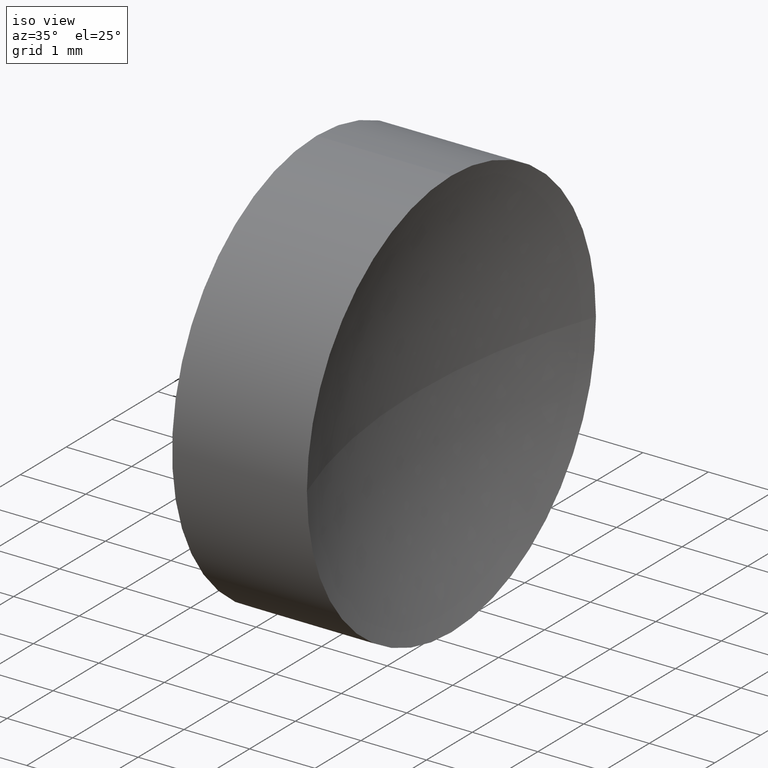
[diagram: clean part render]
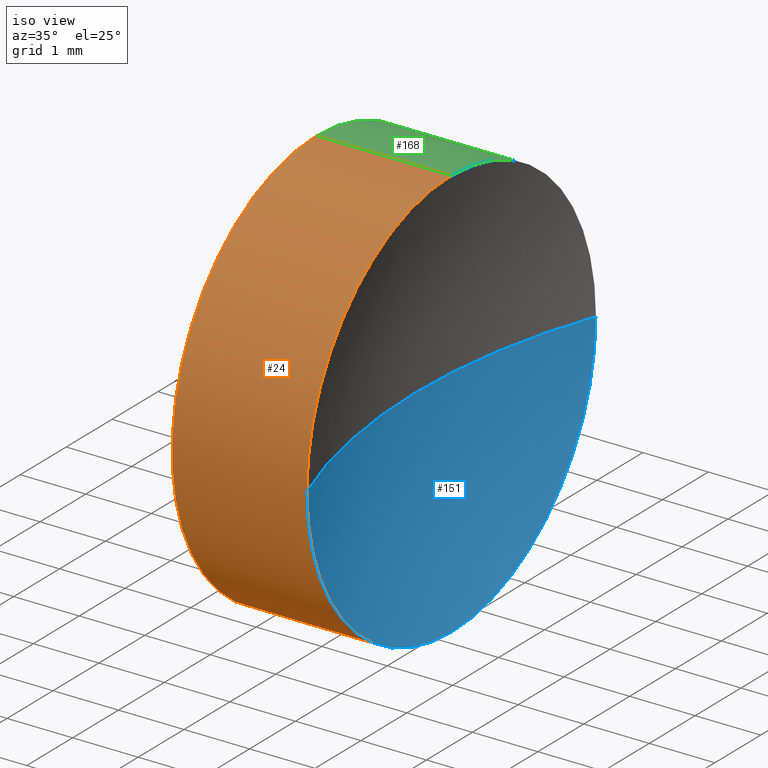
[diagram: same view with three faces highlighted in distinct colors, each labeled with its STEP entity id]
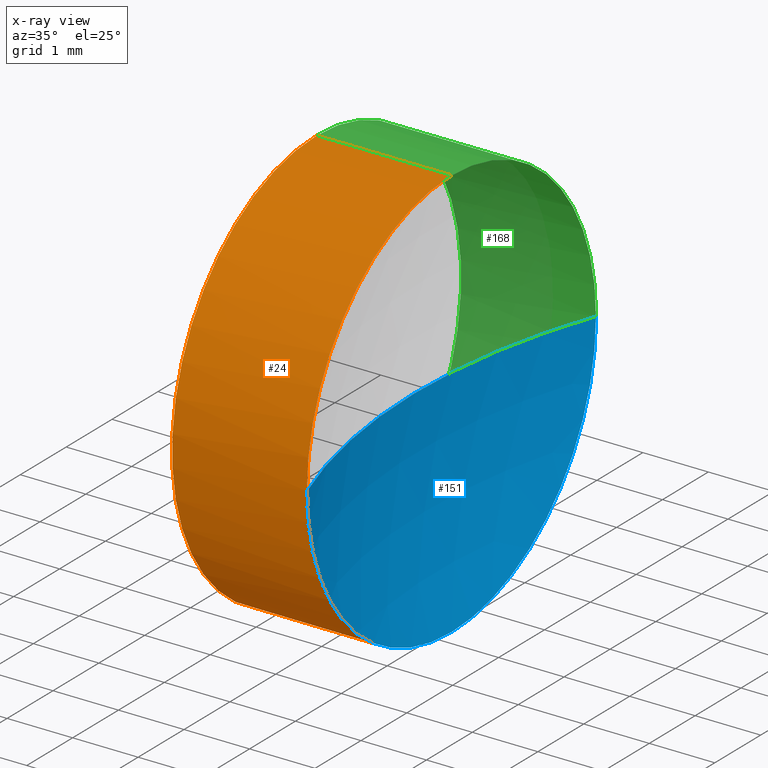
[diagram: x-ray of the same camera — body ghosted, the three highlighted faces saturated]
A machine part, iso view with three faces highlighted in distinct colors.
The next image is the same camera in x-ray (body ghosted, the three faces saturated) — at least one of them is partly hidden behind the body in this view.
Their STEP definitions:

[orange] entity #24 — the highlighted cylindrical surface (partial cylindrical patch) has radius 3.15 mm, axis along (-1, -0, -0).
#2 = DIRECTION ( 'NONE',  ( -1.000000000000000000, -0.0000000000000000000, -0.0000000000000000000 ) ) ;
#3 = CARTESIAN_POINT ( 'NONE',  ( 22.20087548928661300, 13.03112609140304000, -3.149999999999998100 ) ) ;
#4 = DIRECTION ( 'NONE',  ( -1.000000000000000000, -0.0000000000000000000, -0.0000000000000000000 ) ) ;
#5 = LINE ( 'NONE', #109, #106 ) ;
#13 = ORIENTED_EDGE ( 'NONE', *, *, #71, .T. ) ;
#14 = DIRECTION ( 'NONE',  ( 0.0000000000000000000, 0.0000000000000000000, 1.000000000000000000 ) ) ;
#15 = DIRECTION ( 'NONE',  ( -1.000000000000000000, -0.0000000000000000000, -0.0000000000000000000 ) ) ;
#22 = VERTEX_POINT ( 'NONE', #3 ) ;
#24 = ADVANCED_FACE ( 'NONE', ( #183 ), #132, .T. ) ;
#26 = ORIENTED_EDGE ( 'NONE', *, *, #80, .T. ) ;
#28 = EDGE_CURVE ( 'NONE', #67, #45, #55, .T. ) ;
#29 = CARTESIAN_POINT ( 'NONE',  ( 24.25888386169071300, 13.03112609140304000, 0.0000000000000000000 ) ) ;
#30 = CIRCLE ( 'NONE', #130, 3.149999999999998100 ) ;
#31 = CARTESIAN_POINT ( 'NONE',  ( 21.15647192244426100, 13.03112609140304000, 3.149999999999998100 ) ) ;
#38 = AXIS2_PLACEMENT_3D ( 'NONE', #74, #59, #51 ) ;
#45 = VERTEX_POINT ( 'NONE', #126 ) ;
#47 = CARTESIAN_POINT ( 'NONE',  ( 21.15647192244426100, 13.03112609140304000, 0.0000000000000000000 ) ) ;
#48 = DIRECTION ( 'NONE',  ( -1.000000000000000000, -0.0000000000000000000, -0.0000000000000000000 ) ) ;
#51 = DIRECTION ( 'NONE',  ( 0.0000000000000000000, 0.0000000000000000000, 1.000000000000000000 ) ) ;
#53 = ORIENTED_EDGE ( 'NONE', *, *, #65, .F. ) ;
#55 = CIRCLE ( 'NONE', #91, 3.149999999999998100 ) ;
#56 = CARTESIAN_POINT ( 'NONE',  ( 24.25888386169071300, 9.881126091403048800, 0.0000000000000000000 ) ) ;
#59 = DIRECTION ( 'NONE',  ( -1.000000000000000000, -0.0000000000000000000, -0.0000000000000000000 ) ) ;
#65 = EDGE_CURVE ( 'NONE', #164, #22, #5, .T. ) ;
#67 = VERTEX_POINT ( 'NONE', #56 ) ;
#70 = CARTESIAN_POINT ( 'NONE',  ( 22.20087548928661300, 13.03112609140304000, 3.149999999999998100 ) ) ;
#71 = EDGE_CURVE ( 'NONE', #164, #67, #30, .T. ) ;
#73 = DIRECTION ( 'NONE',  ( 0.0000000000000000000, 0.0000000000000000000, 1.000000000000000000 ) ) ;
#74 = CARTESIAN_POINT ( 'NONE',  ( 22.20087548928661300, 13.03112609140304000, 0.0000000000000000000 ) ) ;
#77 = VERTEX_POINT ( 'NONE', #70 ) ;
#80 = EDGE_CURVE ( 'NONE', #45, #77, #93, .T. ) ;
#81 = EDGE_LOOP ( 'NONE', ( #53, #13, #134, #26, #156 ) ) ;
#89 = CIRCLE ( 'NONE', #38, 3.149999999999998100 ) ;
#91 = AXIS2_PLACEMENT_3D ( 'NONE', #29, #2, #94 ) ;
#93 = LINE ( 'NONE', #31, #124 ) ;
#94 = DIRECTION ( 'NONE',  ( 0.0000000000000000000, 0.0000000000000000000, 1.000000000000000000 ) ) ;
#95 = DIRECTION ( 'NONE',  ( -1.000000000000000000, -0.0000000000000000000, -0.0000000000000000000 ) ) ;
#97 = EDGE_CURVE ( 'NONE', #22, #77, #89, .T. ) ;
#106 = VECTOR ( 'NONE', #48, 1000.000000000000000 ) ;
#109 = CARTESIAN_POINT ( 'NONE',  ( 21.15647192244426100, 13.03112609140304000, -3.149999999999998100 ) ) ;
#124 = VECTOR ( 'NONE', #15, 1000.000000000000000 ) ;
#126 = CARTESIAN_POINT ( 'NONE',  ( 24.25888386169071300, 13.03112609140304000, 3.149999999999998100 ) ) ;
#130 = AXIS2_PLACEMENT_3D ( 'NONE', #136, #4, #73 ) ;
#132 = CYLINDRICAL_SURFACE ( 'NONE', #153, 3.149999999999998100 ) ;
#134 = ORIENTED_EDGE ( 'NONE', *, *, #28, .T. ) ;
#136 = CARTESIAN_POINT ( 'NONE',  ( 24.25888386169071300, 13.03112609140304000, 0.0000000000000000000 ) ) ;
#153 = AXIS2_PLACEMENT_3D ( 'NONE', #47, #95, #14 ) ;
#156 = ORIENTED_EDGE ( 'NONE', *, *, #97, .F. ) ;
#164 = VERTEX_POINT ( 'NONE', #181 ) ;
#181 = CARTESIAN_POINT ( 'NONE',  ( 24.25888386169071300, 13.03112609140304000, -3.149999999999998100 ) ) ;
#183 = FACE_OUTER_BOUND ( 'NONE', #81, .T. ) ;

[blue] entity #151 — the highlighted spherical surface has radius 9.17 mm.
#4 = DIRECTION ( 'NONE',  ( -1.000000000000000000, -0.0000000000000000000, -0.0000000000000000000 ) ) ;
#7 = DIRECTION ( 'NONE',  ( 0.0000000000000000000, 0.0000000000000000000, 1.000000000000000000 ) ) ;
#10 = CIRCLE ( 'NONE', #122, 9.170000000000005300 ) ;
#16 = SPHERICAL_SURFACE ( 'NONE', #158, 9.170000000000005300 ) ;
#17 = ORIENTED_EDGE ( 'NONE', *, *, #110, .F. ) ;
#18 = CARTESIAN_POINT ( 'NONE',  ( 24.25888386169071300, 13.03112609140304000, 0.0000000000000000000 ) ) ;
#19 = DIRECTION ( 'NONE',  ( 0.0000000000000000000, -1.000000000000000000, -1.224646799147353200E-016 ) ) ;
#23 = AXIS2_PLACEMENT_3D ( 'NONE', #18, #118, #7 ) ;
#25 = EDGE_LOOP ( 'NONE', ( #60, #127, #17, #173 ) ) ;
#30 = CIRCLE ( 'NONE', #130, 3.149999999999998100 ) ;
#39 = CARTESIAN_POINT ( 'NONE',  ( 32.87087550125935600, 13.03112609140304600, 0.0000000000000000000 ) ) ;
#43 = CIRCLE ( 'NONE', #104, 9.170000000000005300 ) ;
#49 = VERTEX_POINT ( 'NONE', #82 ) ;
#56 = CARTESIAN_POINT ( 'NONE',  ( 24.25888386169071300, 9.881126091403048800, 0.0000000000000000000 ) ) ;
#58 = DIRECTION ( 'NONE',  ( 0.0000000000000000000, 0.0000000000000000000, 1.000000000000000000 ) ) ;
#60 = ORIENTED_EDGE ( 'NONE', *, *, #79, .F. ) ;
#67 = VERTEX_POINT ( 'NONE', #56 ) ;
#71 = EDGE_CURVE ( 'NONE', #164, #67, #30, .T. ) ;
#72 = DIRECTION ( 'NONE',  ( -1.000000000000000000, 0.0000000000000000000, 0.0000000000000000000 ) ) ;
#73 = DIRECTION ( 'NONE',  ( 0.0000000000000000000, 0.0000000000000000000, 1.000000000000000000 ) ) ;
#79 = EDGE_CURVE ( 'NONE', #49, #164, #115, .T. ) ;
#82 = CARTESIAN_POINT ( 'NONE',  ( 24.25888386169071300, 16.18112609140303300, 3.857637417314151800E-016 ) ) ;
#88 = DIRECTION ( 'NONE',  ( 0.0000000000000000000, 0.0000000000000000000, -1.000000000000000000 ) ) ;
#96 = VERTEX_POINT ( 'NONE', #117 ) ;
#104 = AXIS2_PLACEMENT_3D ( 'NONE', #39, #88, #72 ) ;
#110 = EDGE_CURVE ( 'NONE', #67, #96, #43, .T. ) ;
#114 = CARTESIAN_POINT ( 'NONE',  ( 32.87087550125935600, 13.03112609140304600, 0.0000000000000000000 ) ) ;
#115 = CIRCLE ( 'NONE', #23, 3.149999999999998100 ) ;
#117 = CARTESIAN_POINT ( 'NONE',  ( 23.70087550125935000, 13.03112609140304600, 0.0000000000000000000 ) ) ;
#118 = DIRECTION ( 'NONE',  ( -1.000000000000000000, -0.0000000000000000000, -0.0000000000000000000 ) ) ;
#122 = AXIS2_PLACEMENT_3D ( 'NONE', #176, #178, #19 ) ;
#127 = ORIENTED_EDGE ( 'NONE', *, *, #138, .T. ) ;
#130 = AXIS2_PLACEMENT_3D ( 'NONE', #136, #4, #73 ) ;
#133 = FACE_OUTER_BOUND ( 'NONE', #25, .T. ) ;
#136 = CARTESIAN_POINT ( 'NONE',  ( 24.25888386169071300, 13.03112609140304000, 0.0000000000000000000 ) ) ;
#138 = EDGE_CURVE ( 'NONE', #49, #96, #10, .T. ) ;
#151 = ADVANCED_FACE ( 'NONE', ( #133 ), #16, .F. ) ;
#158 = AXIS2_PLACEMENT_3D ( 'NONE', #114, #58, #177 ) ;
#164 = VERTEX_POINT ( 'NONE', #181 ) ;
#173 = ORIENTED_EDGE ( 'NONE', *, *, #71, .F. ) ;
#176 = CARTESIAN_POINT ( 'NONE',  ( 32.87087550125935600, 13.03112609140304600, 0.0000000000000000000 ) ) ;
#177 = DIRECTION ( 'NONE',  ( 0.0000000000000000000, -1.000000000000000000, 0.0000000000000000000 ) ) ;
#178 = DIRECTION ( 'NONE',  ( 0.0000000000000000000, -1.224646799147353200E-016, 1.000000000000000000 ) ) ;
#181 = CARTESIAN_POINT ( 'NONE',  ( 24.25888386169071300, 13.03112609140304000, -3.149999999999998100 ) ) ;

[green] entity #168 — the highlighted cylindrical surface (partial cylindrical patch) has radius 3.15 mm, axis along (-1, -0, -0).
#1 = CIRCLE ( 'NONE', #150, 3.149999999999998100 ) ;
#3 = CARTESIAN_POINT ( 'NONE',  ( 22.20087548928661300, 13.03112609140304000, -3.149999999999998100 ) ) ;
#5 = LINE ( 'NONE', #109, #106 ) ;
#7 = DIRECTION ( 'NONE',  ( 0.0000000000000000000, 0.0000000000000000000, 1.000000000000000000 ) ) ;
#9 = DIRECTION ( 'NONE',  ( -1.000000000000000000, -0.0000000000000000000, -0.0000000000000000000 ) ) ;
#12 = FACE_OUTER_BOUND ( 'NONE', #152, .T. ) ;
#15 = DIRECTION ( 'NONE',  ( -1.000000000000000000, -0.0000000000000000000, -0.0000000000000000000 ) ) ;
#18 = CARTESIAN_POINT ( 'NONE',  ( 24.25888386169071300, 13.03112609140304000, 0.0000000000000000000 ) ) ;
#21 = CIRCLE ( 'NONE', #131, 3.149999999999998100 ) ;
#22 = VERTEX_POINT ( 'NONE', #3 ) ;
#23 = AXIS2_PLACEMENT_3D ( 'NONE', #18, #118, #7 ) ;
#31 = CARTESIAN_POINT ( 'NONE',  ( 21.15647192244426100, 13.03112609140304000, 3.149999999999998100 ) ) ;
#32 = DIRECTION ( 'NONE',  ( -1.000000000000000000, -0.0000000000000000000, -0.0000000000000000000 ) ) ;
#36 = ORIENTED_EDGE ( 'NONE', *, *, #65, .T. ) ;
#37 = CARTESIAN_POINT ( 'NONE',  ( 24.25888386169071300, 13.03112609140304000, 0.0000000000000000000 ) ) ;
#45 = VERTEX_POINT ( 'NONE', #126 ) ;
#48 = DIRECTION ( 'NONE',  ( -1.000000000000000000, -0.0000000000000000000, -0.0000000000000000000 ) ) ;
#49 = VERTEX_POINT ( 'NONE', #82 ) ;
#50 = DIRECTION ( 'NONE',  ( 0.0000000000000000000, 0.0000000000000000000, 1.000000000000000000 ) ) ;
#52 = CARTESIAN_POINT ( 'NONE',  ( 21.15647192244426100, 13.03112609140304000, 0.0000000000000000000 ) ) ;
#61 = AXIS2_PLACEMENT_3D ( 'NONE', #52, #9, #116 ) ;
#65 = EDGE_CURVE ( 'NONE', #164, #22, #5, .T. ) ;
#70 = CARTESIAN_POINT ( 'NONE',  ( 22.20087548928661300, 13.03112609140304000, 3.149999999999998100 ) ) ;
#77 = VERTEX_POINT ( 'NONE', #70 ) ;
#79 = EDGE_CURVE ( 'NONE', #49, #164, #115, .T. ) ;
#80 = EDGE_CURVE ( 'NONE', #45, #77, #93, .T. ) ;
#82 = CARTESIAN_POINT ( 'NONE',  ( 24.25888386169071300, 16.18112609140303300, 3.857637417314151800E-016 ) ) ;
#85 = DIRECTION ( 'NONE',  ( 0.0000000000000000000, 0.0000000000000000000, 1.000000000000000000 ) ) ;
#92 = ORIENTED_EDGE ( 'NONE', *, *, #80, .F. ) ;
#93 = LINE ( 'NONE', #31, #124 ) ;
#100 = EDGE_CURVE ( 'NONE', #77, #22, #21, .T. ) ;
#103 = ORIENTED_EDGE ( 'NONE', *, *, #79, .T. ) ;
#106 = VECTOR ( 'NONE', #48, 1000.000000000000000 ) ;
#109 = CARTESIAN_POINT ( 'NONE',  ( 21.15647192244426100, 13.03112609140304000, -3.149999999999998100 ) ) ;
#113 = CYLINDRICAL_SURFACE ( 'NONE', #61, 3.149999999999998100 ) ;
#115 = CIRCLE ( 'NONE', #23, 3.149999999999998100 ) ;
#116 = DIRECTION ( 'NONE',  ( 0.0000000000000000000, 0.0000000000000000000, 1.000000000000000000 ) ) ;
#118 = DIRECTION ( 'NONE',  ( -1.000000000000000000, -0.0000000000000000000, -0.0000000000000000000 ) ) ;
#124 = VECTOR ( 'NONE', #15, 1000.000000000000000 ) ;
#126 = CARTESIAN_POINT ( 'NONE',  ( 24.25888386169071300, 13.03112609140304000, 3.149999999999998100 ) ) ;
#131 = AXIS2_PLACEMENT_3D ( 'NONE', #140, #32, #85 ) ;
#140 = CARTESIAN_POINT ( 'NONE',  ( 22.20087548928661300, 13.03112609140304000, 0.0000000000000000000 ) ) ;
#144 = EDGE_CURVE ( 'NONE', #45, #49, #1, .T. ) ;
#149 = ORIENTED_EDGE ( 'NONE', *, *, #100, .F. ) ;
#150 = AXIS2_PLACEMENT_3D ( 'NONE', #37, #157, #50 ) ;
#152 = EDGE_LOOP ( 'NONE', ( #103, #36, #149, #92, #170 ) ) ;
#157 = DIRECTION ( 'NONE',  ( -1.000000000000000000, -0.0000000000000000000, -0.0000000000000000000 ) ) ;
#164 = VERTEX_POINT ( 'NONE', #181 ) ;
#168 = ADVANCED_FACE ( 'NONE', ( #12 ), #113, .T. ) ;
#170 = ORIENTED_EDGE ( 'NONE', *, *, #144, .T. ) ;
#181 = CARTESIAN_POINT ( 'NONE',  ( 24.25888386169071300, 13.03112609140304000, -3.149999999999998100 ) ) ;